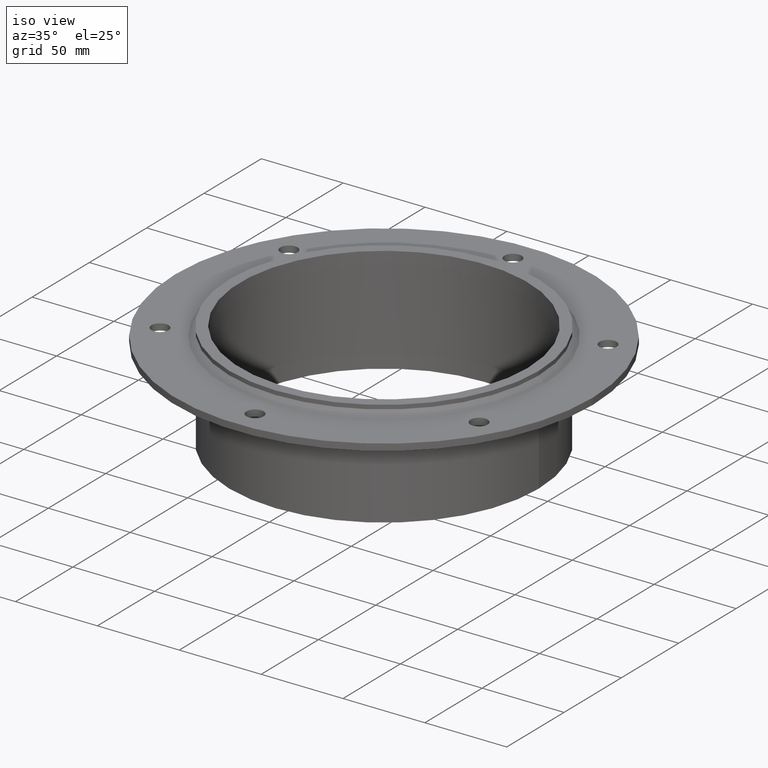
[diagram: clean part render]
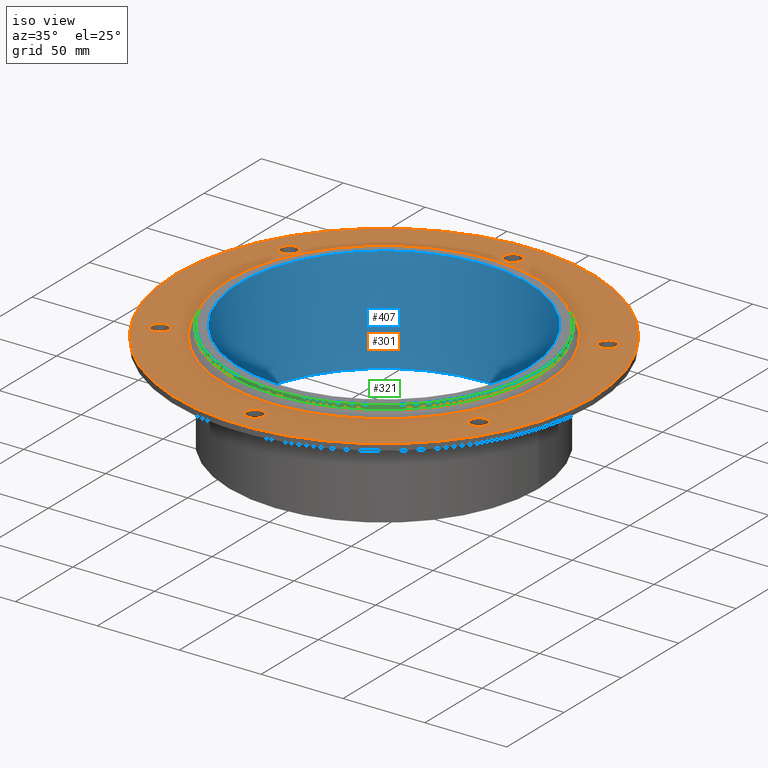
[diagram: same view with three faces highlighted in distinct colors, each labeled with its STEP entity id]
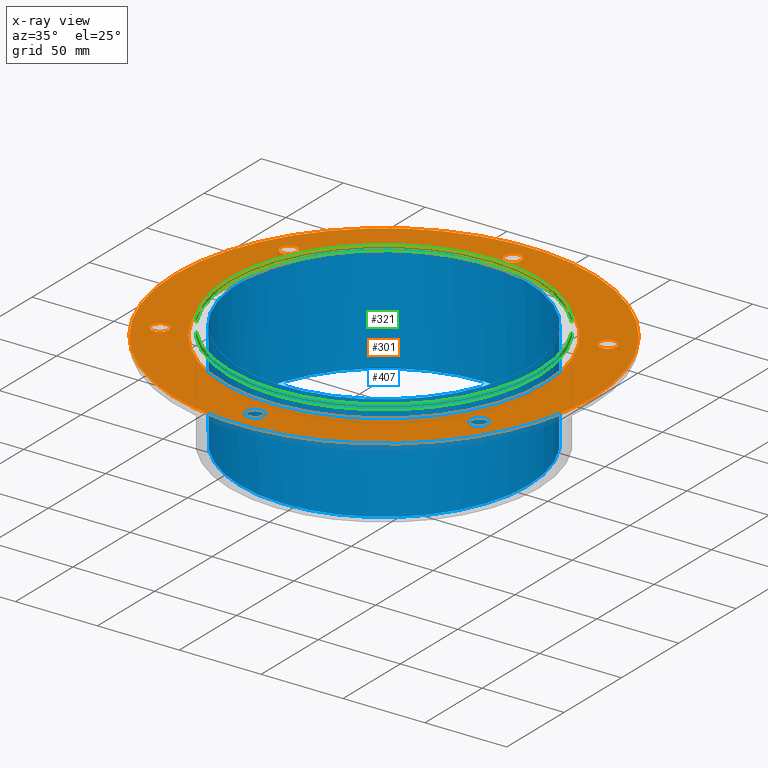
[diagram: x-ray of the same camera — body ghosted, the three highlighted faces saturated]
A machine part, iso view with three faces highlighted in distinct colors.
The next image is the same camera in x-ray (body ghosted, the three faces saturated) — at least one of them is partly hidden behind the body in this view.
Their STEP definitions:

[orange] entity #301 — the highlighted planar face has unit normal (0, 0, 1).
#84=CARTESIAN_POINT('',(-92.17785792574935,-56.249999999999986,-6.000000000000002));
#85=VERTEX_POINT('',#84);
#86=CARTESIAN_POINT('',(-97.42785792574935,-56.249999999999986,-6.000000000000014));
#87=DIRECTION('',(0.0,0.0,-1.0));
#88=DIRECTION('',(1.0,0.0,0.0));
#89=AXIS2_PLACEMENT_3D('',#86,#87,#88);
#90=CIRCLE('',#89,5.25);
#91=EDGE_CURVE('',#85,#85,#90,.T.);
#112=CARTESIAN_POINT('',(102.67785792574929,-56.250000000000036,-6.000000000000002));
#113=VERTEX_POINT('',#112);
#114=CARTESIAN_POINT('',(97.427857925749294,-56.250000000000036,-6.000000000000014));
#115=DIRECTION('',(0.0,0.0,-1.0));
#116=DIRECTION('',(1.0,0.0,0.0));
#117=AXIS2_PLACEMENT_3D('',#114,#115,#116);
#118=CIRCLE('',#117,5.25);
#119=EDGE_CURVE('',#113,#113,#118,.T.);
#140=CARTESIAN_POINT('',(5.25,112.5,-6.000000000000002));
#141=VERTEX_POINT('',#140);
#142=CARTESIAN_POINT('',(0.0,112.5,-6.000000000000014));
#143=DIRECTION('',(0.0,0.0,-1.0));
#144=DIRECTION('',(1.0,0.0,0.0));
#145=AXIS2_PLACEMENT_3D('',#142,#143,#144);
#146=CIRCLE('',#145,5.25);
#147=EDGE_CURVE('',#141,#141,#146,.T.);
#168=CARTESIAN_POINT('',(102.67785792574939,56.249999999999929,-6.000000000000002));
#169=VERTEX_POINT('',#168);
#170=CARTESIAN_POINT('',(97.427857925749379,56.249999999999929,-6.000000000000014));
#171=DIRECTION('',(0.0,0.0,-1.0));
#172=DIRECTION('',(1.0,0.0,0.0));
#173=AXIS2_PLACEMENT_3D('',#170,#171,#172);
#174=CIRCLE('',#173,5.25);
#175=EDGE_CURVE('',#169,#169,#174,.T.);
#196=CARTESIAN_POINT('',(5.249999999999991,-112.5,-6.000000000000002));
#197=VERTEX_POINT('',#196);
#198=CARTESIAN_POINT('',(-8.881784E-015,-112.5,-6.000000000000014));
#199=DIRECTION('',(0.0,0.0,-1.0));
#200=DIRECTION('',(1.0,0.0,0.0));
#201=AXIS2_PLACEMENT_3D('',#198,#199,#200);
#202=CIRCLE('',#201,5.25);
#203=EDGE_CURVE('',#197,#197,#202,.T.);
#224=CARTESIAN_POINT('',(-92.17785792574935,56.250000000000028,-6.000000000000002));
#225=VERTEX_POINT('',#224);
#226=CARTESIAN_POINT('',(-97.42785792574935,56.250000000000028,-6.000000000000014));
#227=DIRECTION('',(0.0,0.0,-1.0));
#228=DIRECTION('',(1.0,0.0,0.0));
#229=AXIS2_PLACEMENT_3D('',#226,#227,#228);
#230=CIRCLE('',#229,5.25);
#231=EDGE_CURVE('',#225,#225,#230,.T.);
#241=CARTESIAN_POINT('',(98.0,1.200154E-014,-6.000000000000002));
#242=VERTEX_POINT('',#241);
#243=CARTESIAN_POINT('',(0.0,0.0,-6.000000000000002));
#244=DIRECTION('',(0.0,0.0,1.0));
#245=DIRECTION('',(-1.0,0.0,0.0));
#246=AXIS2_PLACEMENT_3D('',#243,#244,#245);
#247=CIRCLE('',#246,98.0);
#248=EDGE_CURVE('',#242,#242,#247,.T.);
#264=CARTESIAN_POINT('',(-1.301187E-015,0.0,-6.000000000000002));
#265=DIRECTION('',(0.0,0.0,1.0));
#266=DIRECTION('',(1.0,0.0,0.0));
#267=AXIS2_PLACEMENT_3D('',#264,#265,#266);
#268=PLANE('',#267);
#269=CARTESIAN_POINT('',(127.5,1.561425E-014,-6.000000000000002));
#270=VERTEX_POINT('',#269);
#271=CARTESIAN_POINT('',(0.0,0.0,-6.000000000000002));
#272=DIRECTION('',(0.0,0.0,1.0));
#273=DIRECTION('',(-1.0,0.0,0.0));
#274=AXIS2_PLACEMENT_3D('',#271,#272,#273);
#275=CIRCLE('',#274,127.5);
#276=EDGE_CURVE('',#270,#270,#275,.T.);
#277=ORIENTED_EDGE('',*,*,#276,.T.);
#278=EDGE_LOOP('',(#277));
#279=FACE_OUTER_BOUND('',#278,.T.);
#280=ORIENTED_EDGE('',*,*,#91,.T.);
#281=EDGE_LOOP('',(#280));
#282=FACE_BOUND('',#281,.T.);
#283=ORIENTED_EDGE('',*,*,#119,.T.);
#284=EDGE_LOOP('',(#283));
#285=FACE_BOUND('',#284,.T.);
#286=ORIENTED_EDGE('',*,*,#147,.T.);
#287=EDGE_LOOP('',(#286));
#288=FACE_BOUND('',#287,.T.);
#289=ORIENTED_EDGE('',*,*,#175,.T.);
#290=EDGE_LOOP('',(#289));
#291=FACE_BOUND('',#290,.T.);
#292=ORIENTED_EDGE('',*,*,#203,.T.);
#293=EDGE_LOOP('',(#292));
#294=FACE_BOUND('',#293,.T.);
#295=ORIENTED_EDGE('',*,*,#231,.T.);
#296=EDGE_LOOP('',(#295));
#297=FACE_BOUND('',#296,.T.);
#298=ORIENTED_EDGE('',*,*,#248,.F.);
#299=EDGE_LOOP('',(#298));
#300=FACE_BOUND('',#299,.T.);
#301=ADVANCED_FACE('',(#279,#282,#285,#288,#291,#294,#297,#300),#268,.T.);

[blue] entity #407 — the highlighted cylindrical surface (bore or boss wall) has radius 88 mm, axis along (0, 0, 1).
#380=CARTESIAN_POINT('',(0.0,0.0,-275.07635303675238));
#381=DIRECTION('',(0.0,0.0,1.0));
#382=DIRECTION('',(1.0,0.0,0.0));
#383=AXIS2_PLACEMENT_3D('',#380,#381,#382);
#384=CYLINDRICAL_SURFACE('',#383,88.0);
#385=CARTESIAN_POINT('',(-88.0,-1.077689E-014,-65.0));
#386=VERTEX_POINT('',#385);
#387=CARTESIAN_POINT('',(0.0,0.0,-65.0));
#388=DIRECTION('',(0.0,0.0,1.0));
#389=DIRECTION('',(1.0,0.0,0.0));
#390=AXIS2_PLACEMENT_3D('',#387,#388,#389);
#391=CIRCLE('',#390,88.0);
#392=EDGE_CURVE('',#386,#386,#391,.T.);
#393=ORIENTED_EDGE('',*,*,#392,.F.);
#394=EDGE_LOOP('',(#393));
#395=FACE_OUTER_BOUND('',#394,.T.);
#396=CARTESIAN_POINT('',(88.0,0.0,0.0));
#397=VERTEX_POINT('',#396);
#398=CARTESIAN_POINT('',(0.0,0.0,0.0));
#399=DIRECTION('',(0.0,0.0,-1.0));
#400=DIRECTION('',(1.0,0.0,0.0));
#401=AXIS2_PLACEMENT_3D('',#398,#399,#400);
#402=CIRCLE('',#401,88.0);
#403=EDGE_CURVE('',#397,#397,#402,.T.);
#404=ORIENTED_EDGE('',*,*,#403,.F.);
#405=EDGE_LOOP('',(#404));
#406=FACE_BOUND('',#405,.T.);
#407=ADVANCED_FACE('',(#395,#406),#384,.F.);

[green] entity #321 — the highlighted cylindrical surface (bore or boss wall) has radius 94.5 mm, axis along (0, 0, -1).
#252=CARTESIAN_POINT('',(94.500000000000014,-1.157291E-014,-2.500000000000002));
#253=VERTEX_POINT('',#252);
#254=CARTESIAN_POINT('',(0.0,0.0,-2.500000000000002));
#255=DIRECTION('',(0.0,0.0,-1.0));
#256=DIRECTION('',(-1.0,0.0,0.0));
#257=AXIS2_PLACEMENT_3D('',#254,#255,#256);
#258=CIRCLE('',#257,94.500000000000014);
#259=EDGE_CURVE('',#253,#253,#258,.T.);
#302=CARTESIAN_POINT('',(0.0,0.0,0.0));
#303=DIRECTION('',(0.0,0.0,-1.0));
#304=DIRECTION('',(-1.0,0.0,0.0));
#305=AXIS2_PLACEMENT_3D('',#302,#303,#304);
#306=CYLINDRICAL_SURFACE('',#305,94.500000000000014);
#307=CARTESIAN_POINT('',(94.500000000000014,1.157291E-014,0.0));
#308=VERTEX_POINT('',#307);
#309=CARTESIAN_POINT('',(0.0,0.0,0.0));
#310=DIRECTION('',(0.0,0.0,-1.0));
#311=DIRECTION('',(-1.0,0.0,0.0));
#312=AXIS2_PLACEMENT_3D('',#309,#310,#311);
#313=CIRCLE('',#312,94.500000000000014);
#314=EDGE_CURVE('',#308,#308,#313,.T.);
#315=ORIENTED_EDGE('',*,*,#314,.T.);
#316=EDGE_LOOP('',(#315));
#317=FACE_OUTER_BOUND('',#316,.T.);
#318=ORIENTED_EDGE('',*,*,#259,.F.);
#319=EDGE_LOOP('',(#318));
#320=FACE_BOUND('',#319,.T.);
#321=ADVANCED_FACE('',(#317,#320),#306,.T.);